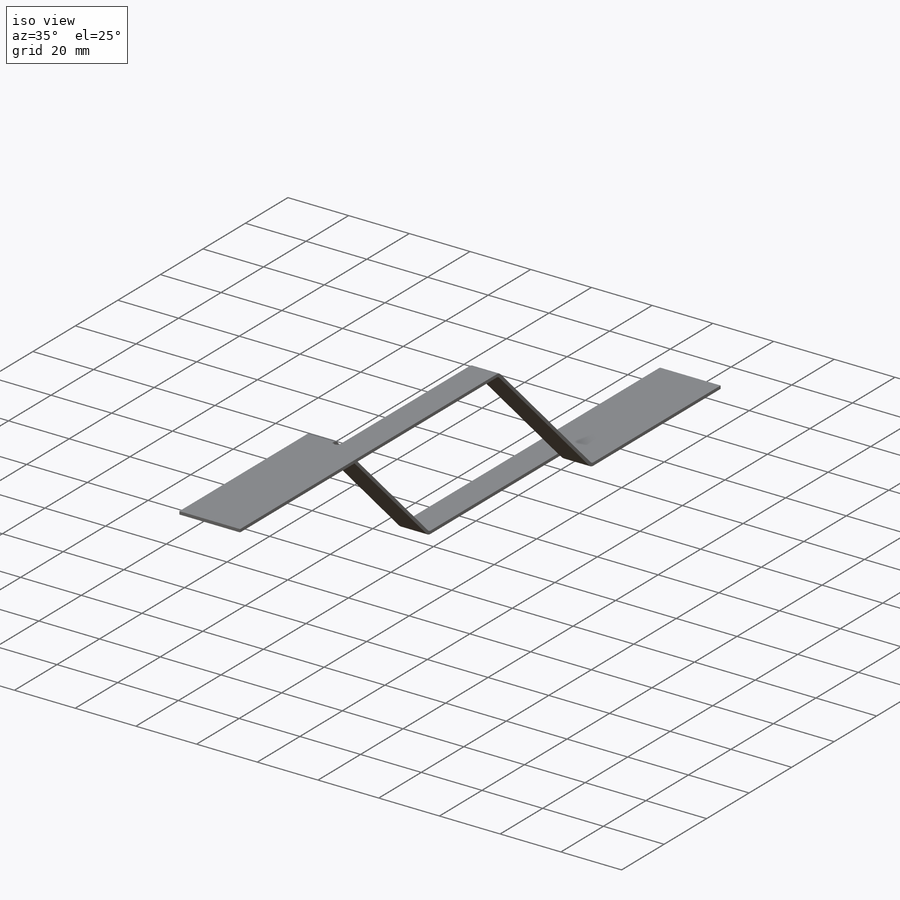
[diagram: iso view]
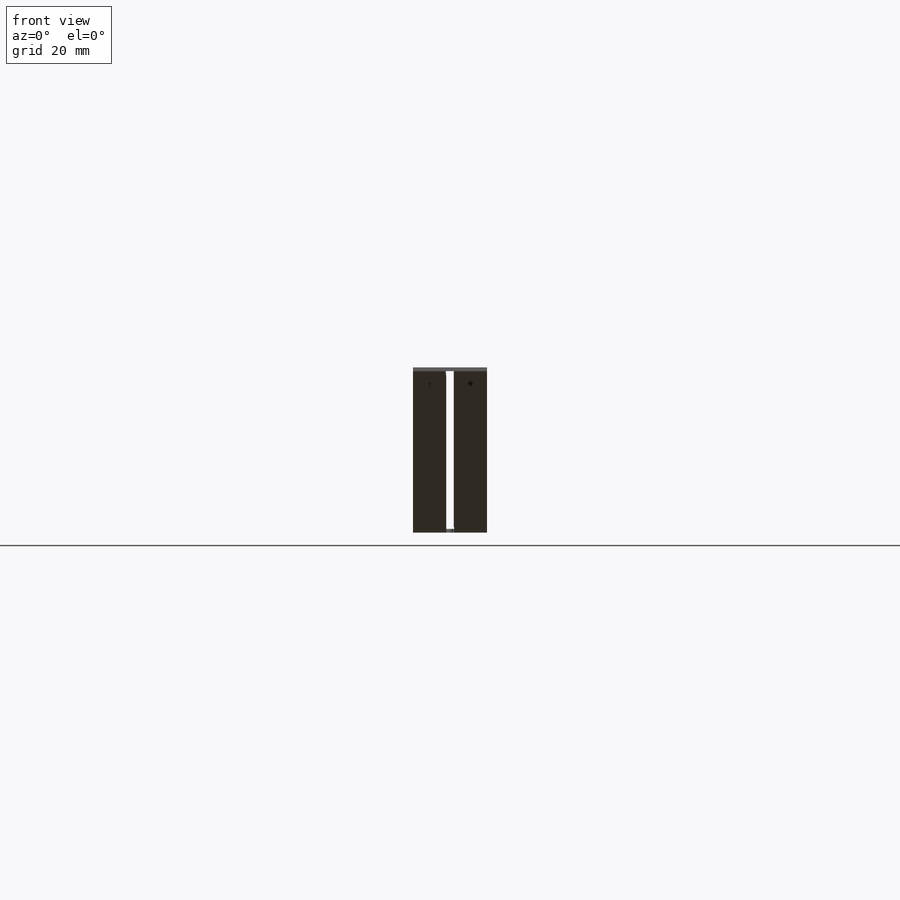
[diagram: front view]
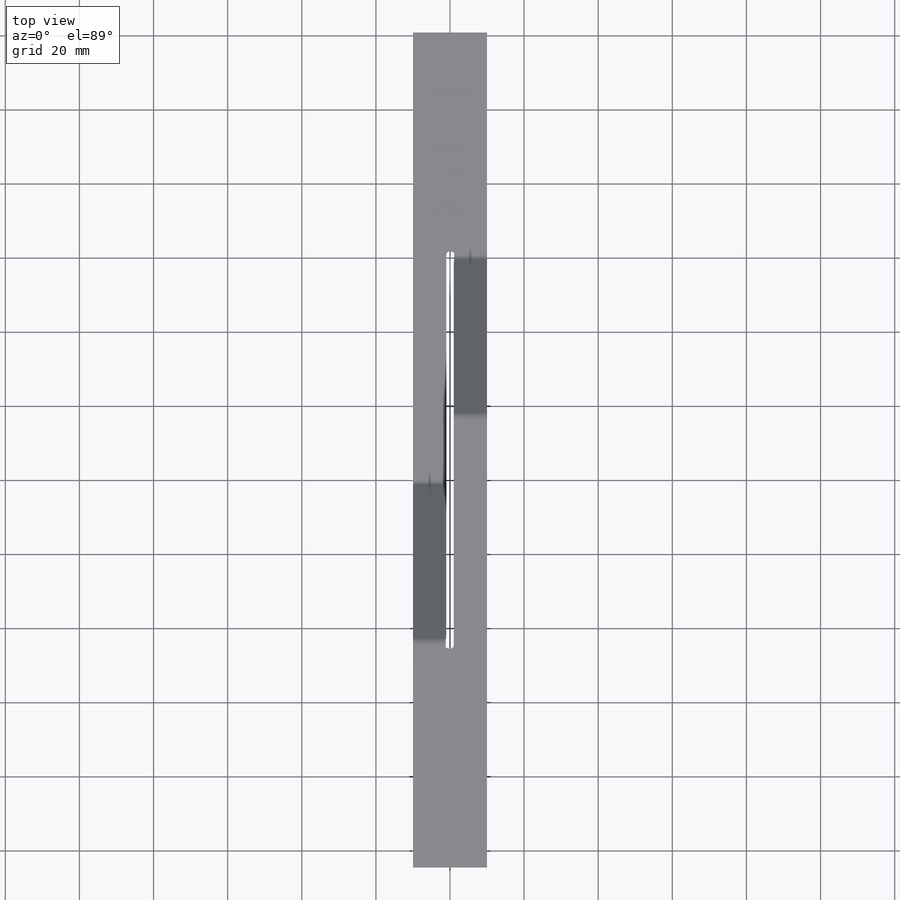
[diagram: top view]
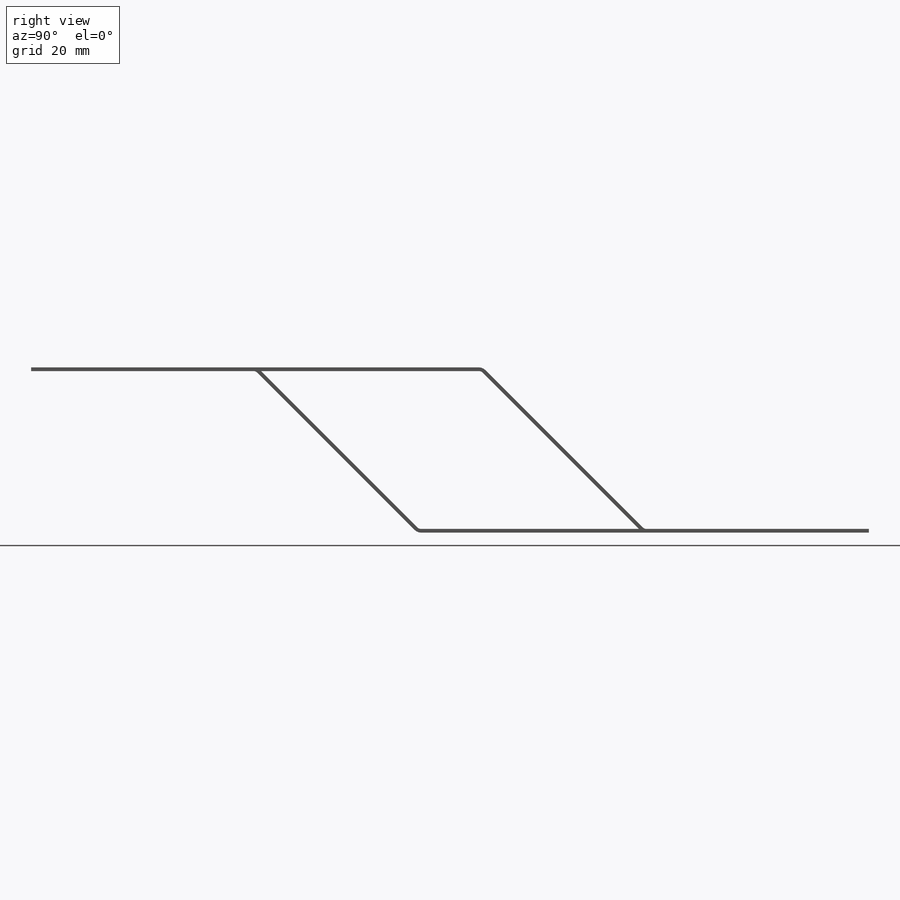
[diagram: right view]
SOLIDWORKS PART (.sldprt)
format: sldprt  version: not decoded by parser v0  size: 377,856 bytes
history: native  units: mm
features: sketch x8, plane x3, sheet_metal_op x2, boolean_combine x2, material x1, cut_extrude x1, extrude x1 + 6 further entries (+8 scaffold rows collapsed; 1 parser-record rows omitted)
feature tree (33):
  scaffold x8  (default folders/planes/origin — collapsed)
  material  "Material <nicht festgelegt>"
  plane  "Vorne"
  plane  "Oben"
  plane  "Rechts"
  sketch  "Skizze1"  dims[c1.D2=2.0mm c1.D1=~67.828041mm c2.D1=45.0deg c2.D2=60.0mm c2.D3=60.0mm c2.D4=60.0mm]
  sketch  "Skizze2"  dims[D1=10.0mm D5=1.0mm D6=10.0mm D7=5.0mm]
  sketch  "Skizze3"  dims[D1=10.0mm D5=1.0mm D6=1.0mm D7=5.0mm]
  sketch  "Skizze6"  dims[D1=1.0mm]
  cut_extrude  "Schnitt-Linear austragen1"  [1 undecoded]
  sheet_metal_op  "Blech2"  Biegung-Rundung6=0
  extrude  "Blech3"  Depth=1.5mm
  sheet_metal_op  "Volumenkörper übernehmen3"  Biegung-Rundung7=0 Biegung-Rundung8=0
  boolean_combine  "Kombinieren1"  AbgeleiteteBiegung1=0 AbgeleiteteBiegung2=0
  "Abwicklung2"
  sketch  "Biegung-Linien2"
  sketch  "Rahmen2"
  "Abwickeln-<Biegung-Rundung6>1"
  "Abwickeln-<AbgeleiteteBiegung1>1"
  "Abwickeln-<AbgeleiteteBiegung2>1"
  parser-record x1  (decoder bookkeeping rows leaked as tree rows — omitted from the tree; the rows remain in map.json)
  boolean_combine  "Abwicklung3"
  sketch  "Biegung-Linien3"
  sketch  "Rahmen3"
  "Abwickeln-<Biegung-Rundung7>1"
  "Abwickeln-<Biegung-Rundung8>1"
decode coverage: 8 of 14 modeling features carry decoded parameters; 6 rows unclassified (native names shown)
note: ~ marks probable driven/reference dimensions
note: 1 parameter value undecoded
note: suppression state not decoded; provenance and decode notes live in map.json
